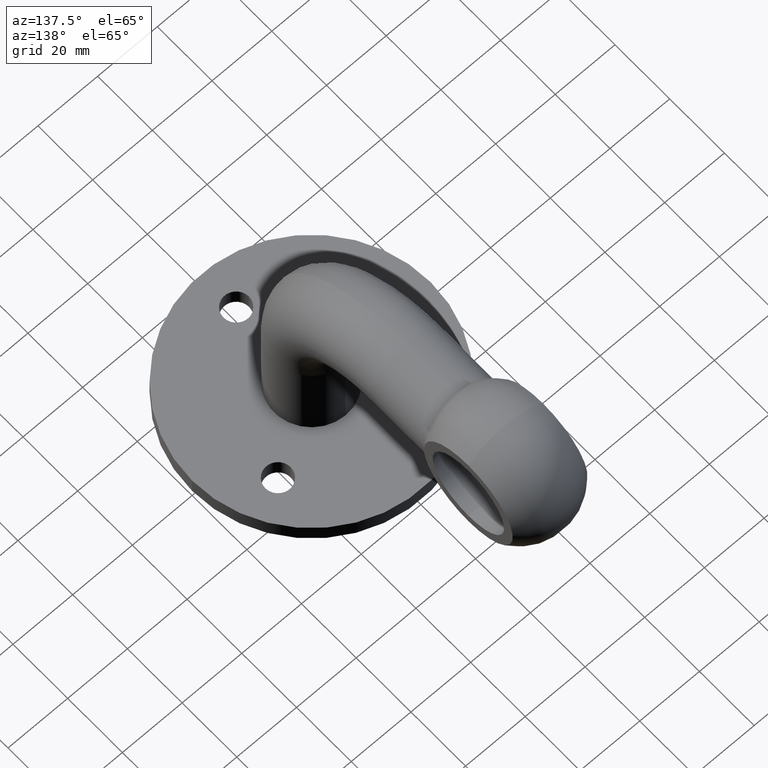
[diagram: clean part render]
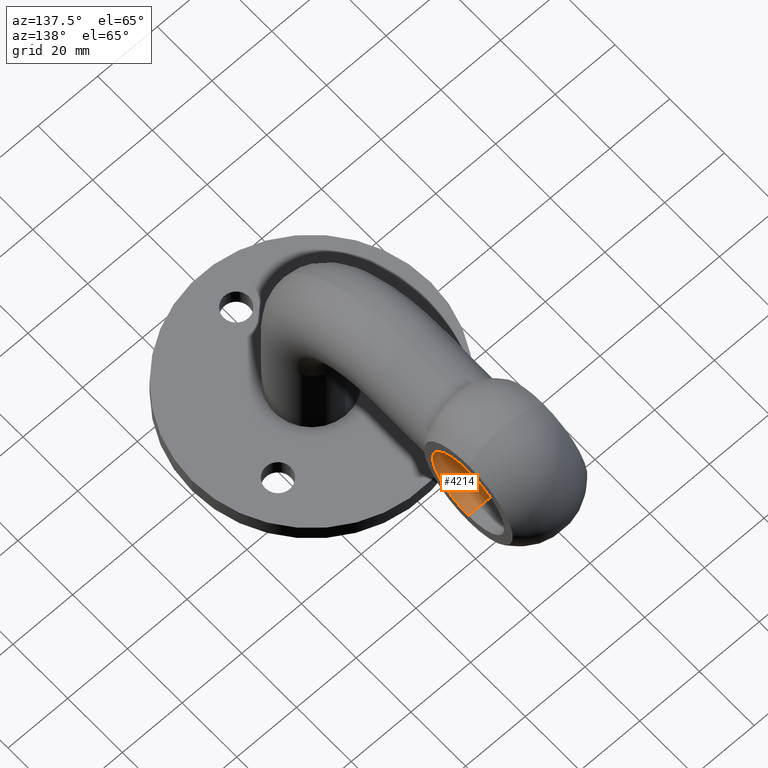
[diagram: same view with one face highlighted and labeled with its STEP entity id]
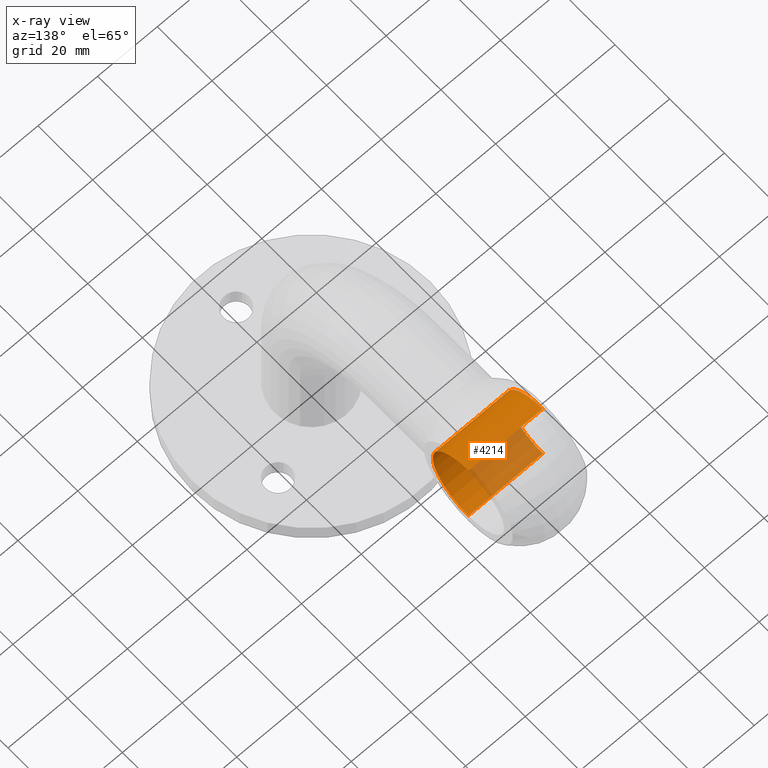
[diagram: x-ray of the same camera — body ghosted, the highlighted face saturated]
A machine part, auxiliary view. The second image highlights one B-rep face of the part: STEP entity #4214.
The next image is the same camera in x-ray: the body ghosted, the highlighted face saturated — about 31% of this face is hidden behind the body in this view.
In plain terms, the highlighted cylindrical surface (partial cylindrical patch) has radius 13.1 mm, axis along (-1, -0, -0).
Its self-contained STEP definition (entity closure, byte-faithful):
#736 = VECTOR ( 'NONE', #11224, 1000.000000000000000 ) ;
#969 = EDGE_CURVE ( 'NONE', #2897, #5841, #11520, .T. ) ;
#1434 = DIRECTION ( 'NONE',  ( -1.000000000000000000, -0.000000000000000000, -0.000000000000000000 ) ) ;
#1572 = CARTESIAN_POINT ( 'NONE',  ( -12.50000000000000000, 71.00000000000000000, 57.89999999999999147 ) ) ;
#1887 = DIRECTION ( 'NONE',  ( 0.000000000000000000, 0.000000000000000000, 1.000000000000000000 ) ) ;
#1955 = CYLINDRICAL_SURFACE ( 'NONE', #9980, 13.10000000000000142 ) ;
#2063 = DIRECTION ( 'NONE',  ( -1.000000000000000000, -0.000000000000000000, -0.000000000000000000 ) ) ;
#2393 = DIRECTION ( 'NONE',  ( 0.000000000000000000, 0.000000000000000000, 1.000000000000000000 ) ) ;
#2463 = CARTESIAN_POINT ( 'NONE',  ( 12.50000000000000000, 71.00000000000000000, 57.89999999999999147 ) ) ;
#2897 = VERTEX_POINT ( 'NONE', #1572 ) ;
#3009 = DIRECTION ( 'NONE',  ( 0.000000000000000000, 0.000000000000000000, 1.000000000000000000 ) ) ;
#3462 = CARTESIAN_POINT ( 'NONE',  ( -12.50000000000000000, 71.00000000000000000, 84.09999999999999432 ) ) ;
#3691 = ORIENTED_EDGE ( 'NONE', *, *, #969, .T. ) ;
#4139 = LINE ( 'NONE', #12028, #736 ) ;
#4214 = ADVANCED_FACE ( 'NONE', ( #5084 ), #1955, .F. ) ;
#4653 = CARTESIAN_POINT ( 'NONE',  ( -12.50000000000000000, 71.00000000000000000, 71.00000000000000000 ) ) ;
#4734 = EDGE_CURVE ( 'NONE', #11442, #8694, #6235, .T. ) ;
#5084 = FACE_OUTER_BOUND ( 'NONE', #9852, .T. ) ;
#5213 = CARTESIAN_POINT ( 'NONE',  ( -12.50000000000000000, 71.00000000000000000, 71.00000000000000000 ) ) ;
#5759 = ORIENTED_EDGE ( 'NONE', *, *, #6227, .T. ) ;
#5841 = VERTEX_POINT ( 'NONE', #12030 ) ;
#6180 = LINE ( 'NONE', #3462, #7073 ) ;
#6227 = EDGE_CURVE ( 'NONE', #11442, #2897, #4139, .T. ) ;
#6235 = CIRCLE ( 'NONE', #8082, 13.10000000000000142 ) ;
#6544 = DIRECTION ( 'NONE',  ( -1.000000000000000000, -0.000000000000000000, -0.000000000000000000 ) ) ;
#6737 = ORIENTED_EDGE ( 'NONE', *, *, #10742, .F. ) ;
#6889 = CARTESIAN_POINT ( 'NONE',  ( 12.50000000000000000, 71.00000000000000000, 71.00000000000000000 ) ) ;
#7073 = VECTOR ( 'NONE', #1434, 1000.000000000000000 ) ;
#7090 = AXIS2_PLACEMENT_3D ( 'NONE', #5213, #7094, #2393 ) ;
#7094 = DIRECTION ( 'NONE',  ( -1.000000000000000000, -0.000000000000000000, -0.000000000000000000 ) ) ;
#7270 = CARTESIAN_POINT ( 'NONE',  ( 12.50000000000000000, 71.00000000000000000, 84.09999999999999432 ) ) ;
#7293 = ORIENTED_EDGE ( 'NONE', *, *, #4734, .F. ) ;
#8082 = AXIS2_PLACEMENT_3D ( 'NONE', #6889, #2063, #3009 ) ;
#8694 = VERTEX_POINT ( 'NONE', #7270 ) ;
#9852 = EDGE_LOOP ( 'NONE', ( #7293, #5759, #3691, #6737 ) ) ;
#9980 = AXIS2_PLACEMENT_3D ( 'NONE', #4653, #6544, #1887 ) ;
#10742 = EDGE_CURVE ( 'NONE', #8694, #5841, #6180, .T. ) ;
#11224 = DIRECTION ( 'NONE',  ( -1.000000000000000000, -0.000000000000000000, -0.000000000000000000 ) ) ;
#11442 = VERTEX_POINT ( 'NONE', #2463 ) ;
#11520 = CIRCLE ( 'NONE', #7090, 13.10000000000000142 ) ;
#12028 = CARTESIAN_POINT ( 'NONE',  ( -12.50000000000000000, 71.00000000000000000, 57.89999999999999147 ) ) ;
#12030 = CARTESIAN_POINT ( 'NONE',  ( -12.50000000000000000, 71.00000000000000000, 84.09999999999999432 ) ) ;